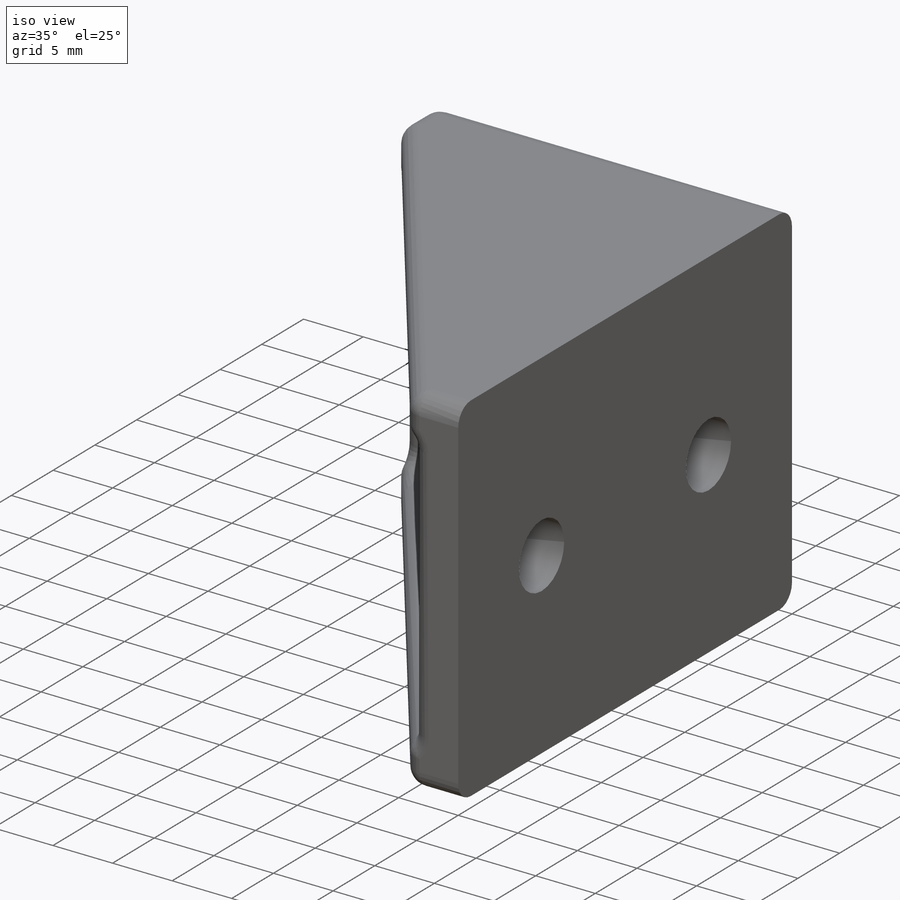
[diagram: iso view]
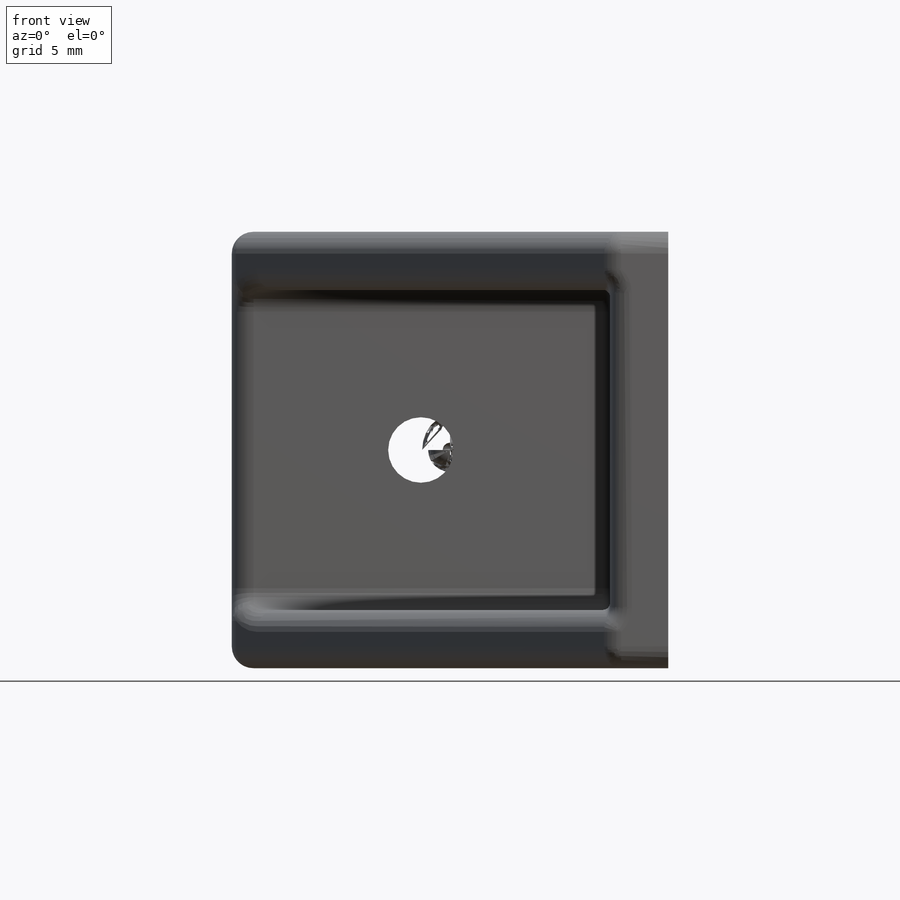
[diagram: front view]
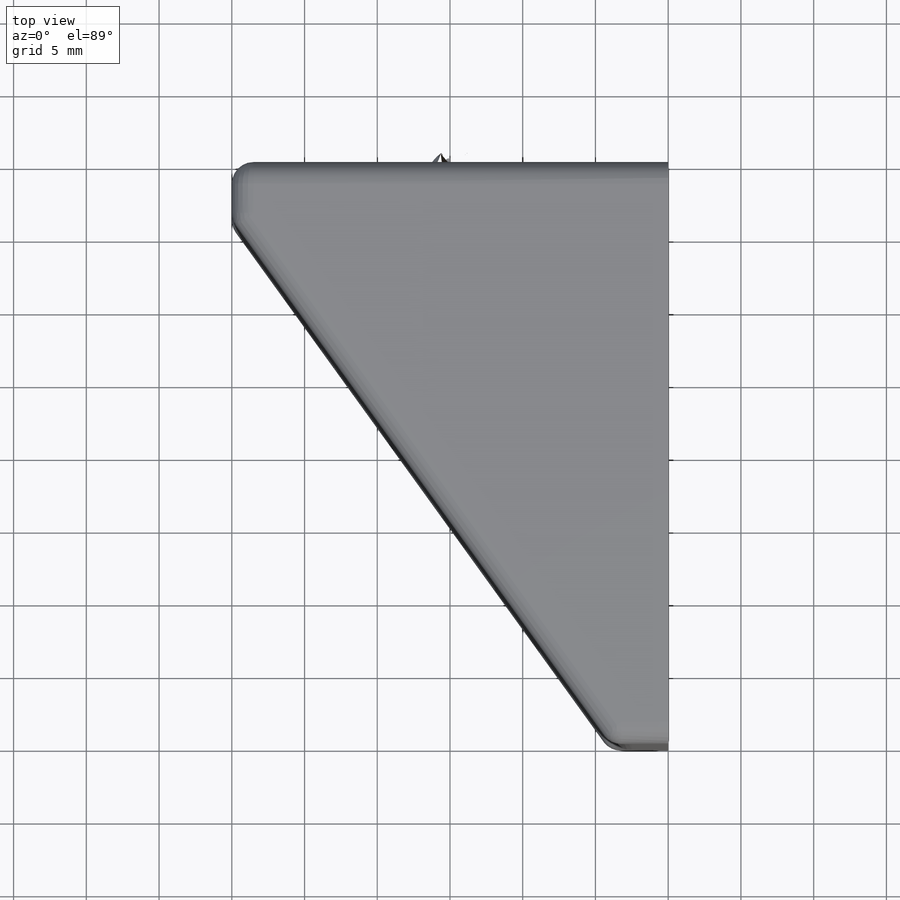
[diagram: top view]
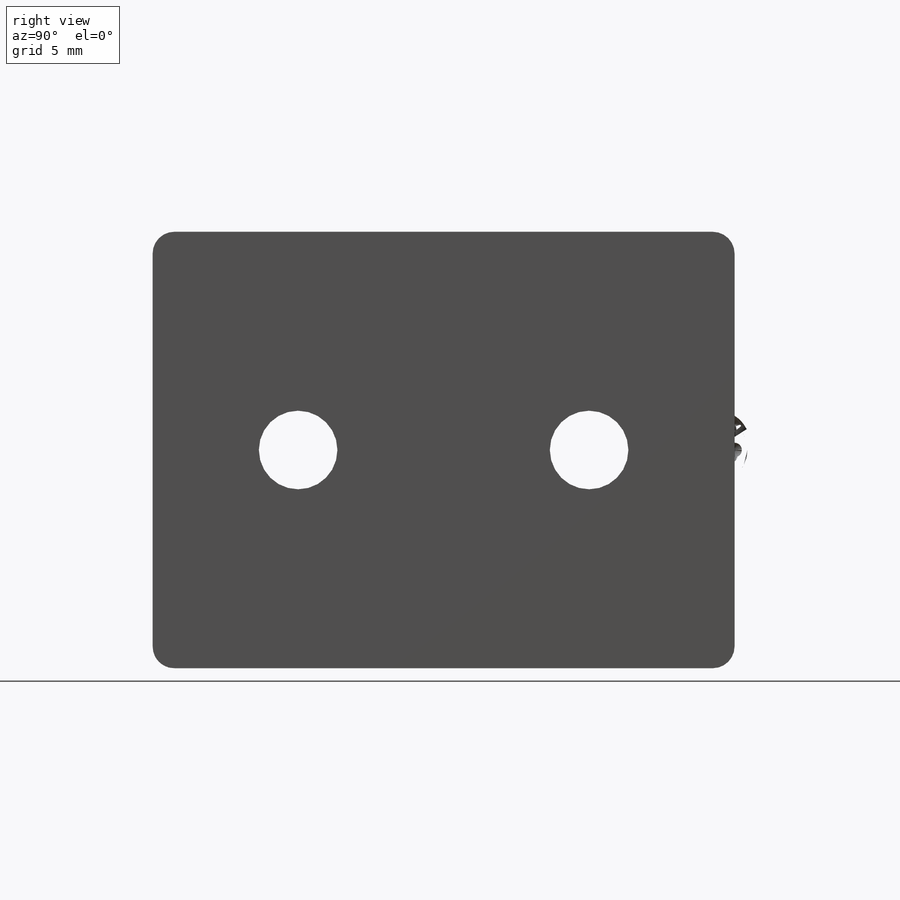
[diagram: right view]
SOLIDWORKS PART (.sldprt)
format: sldprt  version: not decoded by parser v0  size: 357,376 bytes
history: native  units: mm
features: sketch x3, extrude x3, fillet x3, material x1, plane x1, mirror x1 (+13 scaffold rows collapsed)
feature tree (25):
  scaffold x13  (default folders/planes/origin — collapsed)
  material  "ABS"
  sketch  "Sketch1"  dims[c1.D3=4.5mm c1.D4=4.5mm c1.D1=30.0mm c1.D2=30.0mm c2.D4=17.0mm]
  extrude  "Boss-Extrude1"  Depth=4mm
  sketch  "Sketch3"  dims[c1.D2=5.4mm c1.D3=5.4mm c1.D4=5.4mm c1.D1=40.0mm c2.D3=10.0mm c2.D4=20.0mm]
  extrude  "Boss-Extrude3"  Depth=4mm
  plane  "Plane1"
  sketch  "Sketch4"
  extrude  "Boss-Extrude4"  Depth=4mm
  mirror  "Mirror1"
  fillet  "Fillet1"  Radius=1.5mm
  fillet  "Fillet2"  Radius=0.5mm
  fillet  "Fillet3"  Radius=1.5mm
decode coverage: 8 of 10 modeling features carry decoded parameters
note: suppression state not decoded; provenance and decode notes live in map.json
